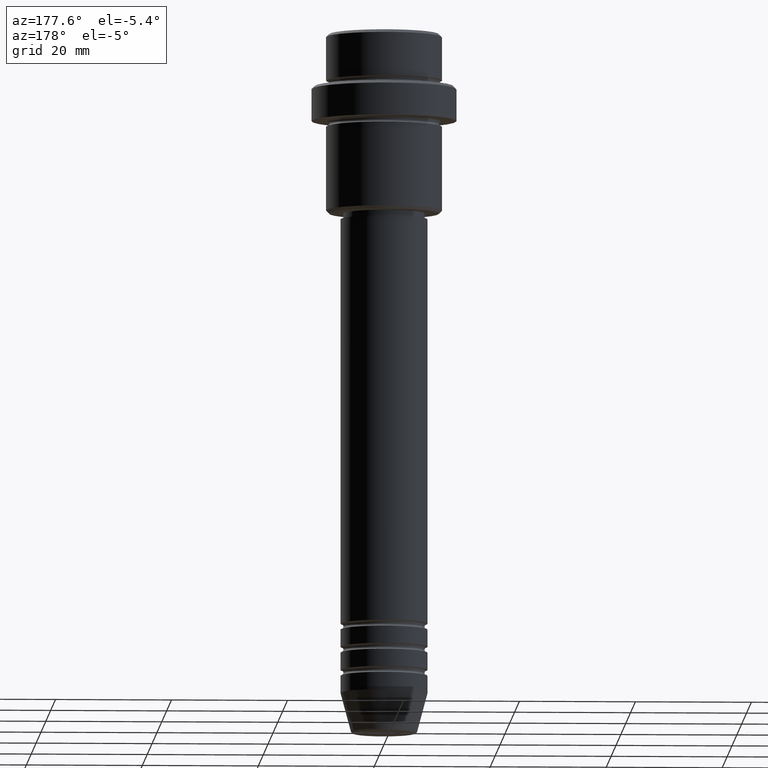
[diagram: clean part render]
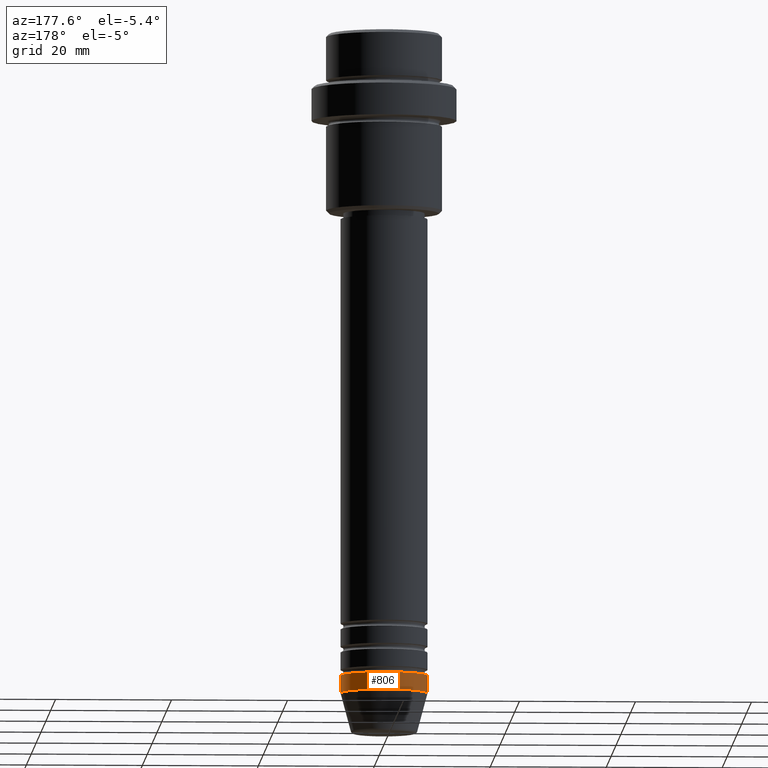
[diagram: same view with one face highlighted and labeled with its STEP entity id]
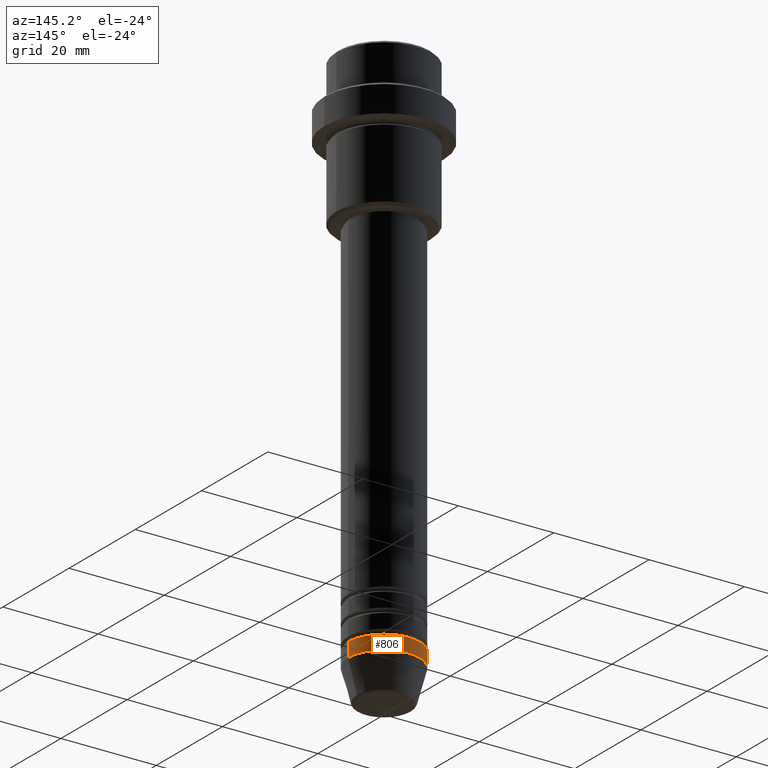
[diagram: same view with one face highlighted and labeled with its STEP entity id]
A machine part, auxiliary view. The second image highlights one B-rep face of the part: STEP entity #806.
A second angle (auxiliary view) of the same face is appended — the face is thin or edge-on in the first view.
In plain terms, the highlighted cylindrical surface (partial cylindrical patch) has radius 7.5 mm, axis along (-0, -0, 1).
Its self-contained STEP definition (entity closure, byte-faithful):
#6 = CIRCLE ( 'NONE', #892, 7.500000000000000000 ) ;
#7 = DIRECTION ( 'NONE',  ( -0.000000000000000000, -0.000000000000000000, 1.000000000000000000 ) ) ;
#49 = CARTESIAN_POINT ( 'NONE',  ( 7.500000000000000000, 0.000000000000000000, -113.9999999999999858 ) ) ;
#101 = ORIENTED_EDGE ( 'NONE', *, *, #871, .F. ) ;
#183 = EDGE_CURVE ( 'NONE', #628, #422, #6, .T. ) ;
#190 = ORIENTED_EDGE ( 'NONE', *, *, #183, .T. ) ;
#296 = EDGE_CURVE ( 'NONE', #422, #832, #817, .T. ) ;
#326 = CARTESIAN_POINT ( 'NONE',  ( 0.000000000000000000, 0.000000000000000000, 0.000000000000000000 ) ) ;
#336 = LINE ( 'NONE', #653, #1182 ) ;
#389 = FACE_OUTER_BOUND ( 'NONE', #978, .T. ) ;
#411 = DIRECTION ( 'NONE',  ( -0.000000000000000000, -0.000000000000000000, 1.000000000000000000 ) ) ;
#422 = VERTEX_POINT ( 'NONE', #770 ) ;
#471 = DIRECTION ( 'NONE',  ( 1.000000000000000000, 0.000000000000000000, 0.000000000000000000 ) ) ;
#517 = VERTEX_POINT ( 'NONE', #876 ) ;
#567 = CARTESIAN_POINT ( 'NONE',  ( 0.000000000000000000, 0.000000000000000000, -110.9999999999999858 ) ) ;
#579 = DIRECTION ( 'NONE',  ( 1.000000000000000000, 0.000000000000000000, 0.000000000000000000 ) ) ;
#594 = EDGE_CURVE ( 'NONE', #517, #832, #845, .T. ) ;
#628 = VERTEX_POINT ( 'NONE', #49 ) ;
#653 = CARTESIAN_POINT ( 'NONE',  ( 7.500000000000000000, 0.000000000000000000, 0.000000000000000000 ) ) ;
#671 = DIRECTION ( 'NONE',  ( -0.000000000000000000, -0.000000000000000000, 1.000000000000000000 ) ) ;
#678 = CARTESIAN_POINT ( 'NONE',  ( 0.000000000000000000, 0.000000000000000000, -113.9999999999999858 ) ) ;
#770 = CARTESIAN_POINT ( 'NONE',  ( -7.500000000000000000, 9.184850993605147944E-16, -113.9999999999999858 ) ) ;
#806 = ADVANCED_FACE ( 'NONE', ( #389 ), #947, .T. ) ;
#817 = LINE ( 'NONE', #1146, #931 ) ;
#832 = VERTEX_POINT ( 'NONE', #982 ) ;
#845 = CIRCLE ( 'NONE', #1029, 7.500000000000000000 ) ;
#848 = AXIS2_PLACEMENT_3D ( 'NONE', #326, #7, #1293 ) ;
#871 = EDGE_CURVE ( 'NONE', #628, #517, #336, .T. ) ;
#876 = CARTESIAN_POINT ( 'NONE',  ( 7.500000000000000000, 0.000000000000000000, -110.9999999999999858 ) ) ;
#892 = AXIS2_PLACEMENT_3D ( 'NONE', #678, #1112, #471 ) ;
#931 = VECTOR ( 'NONE', #411, 1000.000000000000000 ) ;
#944 = ORIENTED_EDGE ( 'NONE', *, *, #594, .F. ) ;
#947 = CYLINDRICAL_SURFACE ( 'NONE', #848, 7.500000000000000000 ) ;
#978 = EDGE_LOOP ( 'NONE', ( #190, #1267, #944, #101 ) ) ;
#982 = CARTESIAN_POINT ( 'NONE',  ( -7.500000000000000000, 9.184850993605147944E-16, -110.9999999999999858 ) ) ;
#1029 = AXIS2_PLACEMENT_3D ( 'NONE', #567, #671, #579 ) ;
#1075 = DIRECTION ( 'NONE',  ( -0.000000000000000000, -0.000000000000000000, 1.000000000000000000 ) ) ;
#1112 = DIRECTION ( 'NONE',  ( -0.000000000000000000, -0.000000000000000000, 1.000000000000000000 ) ) ;
#1146 = CARTESIAN_POINT ( 'NONE',  ( -7.500000000000000000, 9.184850993605147944E-16, 0.000000000000000000 ) ) ;
#1182 = VECTOR ( 'NONE', #1075, 1000.000000000000000 ) ;
#1267 = ORIENTED_EDGE ( 'NONE', *, *, #296, .T. ) ;
#1293 = DIRECTION ( 'NONE',  ( 1.000000000000000000, 0.000000000000000000, 0.000000000000000000 ) ) ;